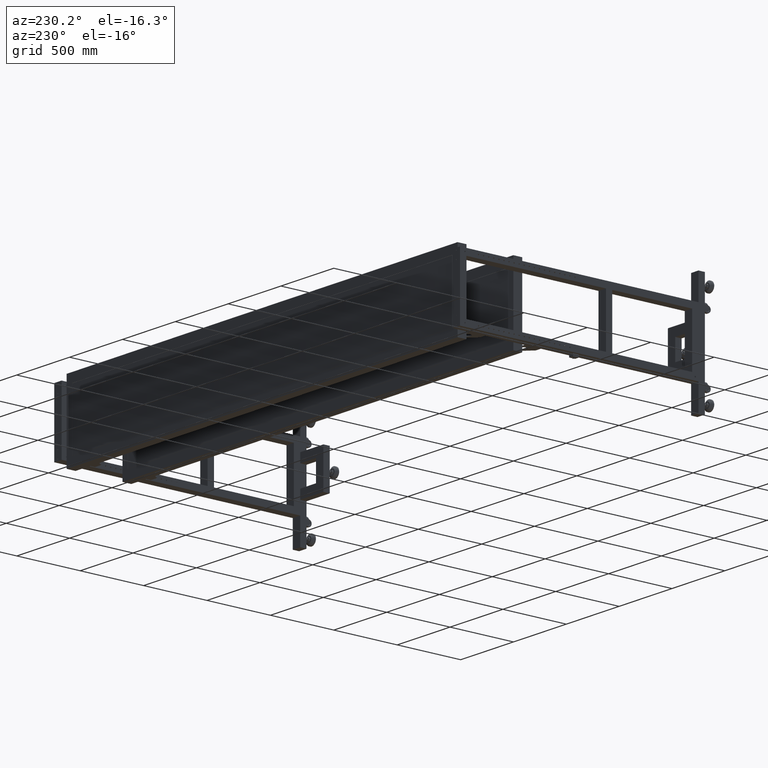
[diagram: clean part render]
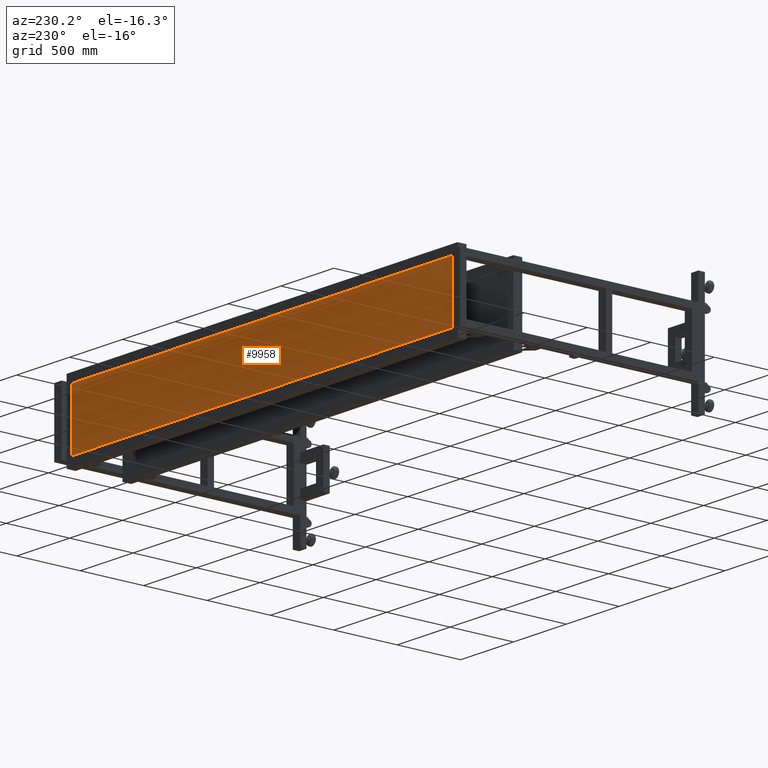
[diagram: same view with one face highlighted and labeled with its STEP entity id]
A machine part, auxiliary view. The second image highlights one B-rep face of the part: STEP entity #9958.
In plain terms, the highlighted planar face has unit normal (-0, 1, 0).
Its self-contained STEP definition (entity closure, byte-faithful):
#283 = LINE ( 'NONE', #43656, #66588 ) ;
#602 = CARTESIAN_POINT ( 'NONE',  ( -1216.662487437185973, 996.9410804020126307, 228.4900000000011744 ) ) ;
#4982 = LINE ( 'NONE', #35648, #56454 ) ;
#5491 = CARTESIAN_POINT ( 'NONE',  ( 2380.317512562815864, 996.9410804020134265, -228.4899999999988438 ) ) ;
#6874 = CARTESIAN_POINT ( 'NONE',  ( 2380.317512562815864, 996.9410804020134265, -228.4899999999988438 ) ) ;
#9958 = ADVANCED_FACE ( 'NONE', ( #29643 ), #17000, .T. ) ;
#11650 = LINE ( 'NONE', #5491, #56738 ) ;
#14496 = EDGE_LOOP ( 'NONE', ( #19431, #40355, #73141, #60924 ) ) ;
#14719 = LINE ( 'NONE', #58490, #63838 ) ;
#16549 = VERTEX_POINT ( 'NONE', #6874 ) ;
#17000 = PLANE ( 'NONE',  #58194 ) ;
#19431 = ORIENTED_EDGE ( 'NONE', *, *, #44378, .F. ) ;
#23924 = DIRECTION ( 'NONE',  ( 4.543257172554225407E-31, -1.000000000000000472E-15, 1.000000000000000000 ) ) ;
#28192 = DIRECTION ( 'NONE',  ( 1.000000000000000000, 4.543257172554223644E-16, 0.000000000000000000 ) ) ;
#29643 = FACE_OUTER_BOUND ( 'NONE', #14496, .T. ) ;
#30427 = DIRECTION ( 'NONE',  ( -4.543257172554223644E-16, 1.000000000000000000, 1.000000000000000472E-15 ) ) ;
#35648 = CARTESIAN_POINT ( 'NONE',  ( 1880.317512562814727, 996.9410804020137675, 228.4900000000011744 ) ) ;
#37366 = VERTEX_POINT ( 'NONE', #47224 ) ;
#40217 = VERTEX_POINT ( 'NONE', #602 ) ;
#40355 = ORIENTED_EDGE ( 'NONE', *, *, #57100, .F. ) ;
#43656 = CARTESIAN_POINT ( 'NONE',  ( -1216.662487437185973, 996.9410804020130854, -228.4899999999988438 ) ) ;
#44378 = EDGE_CURVE ( 'NONE', #80769, #40217, #4982, .T. ) ;
#47224 = CARTESIAN_POINT ( 'NONE',  ( -1216.662487437185973, 996.9410804020130854, -228.4899999999988438 ) ) ;
#54493 = DIRECTION ( 'NONE',  ( -1.000000000000000000, -4.543257172554223644E-16, 0.000000000000000000 ) ) ;
#56454 = VECTOR ( 'NONE', #54493, 1000.000000000000000 ) ;
#56738 = VECTOR ( 'NONE', #62348, 1000.000000000000000 ) ;
#57100 = EDGE_CURVE ( 'NONE', #16549, #80769, #11650, .T. ) ;
#58194 = AXIS2_PLACEMENT_3D ( 'NONE', #79182, #30427, #23924 ) ;
#58490 = CARTESIAN_POINT ( 'NONE',  ( -516.6624874371854048, 996.9410804020130854, -228.4899999999988438 ) ) ;
#60924 = ORIENTED_EDGE ( 'NONE', *, *, #64986, .T. ) ;
#62348 = DIRECTION ( 'NONE',  ( 2.216956027235895584E-31, -1.000000000000000472E-15, 1.000000000000000000 ) ) ;
#63153 = EDGE_CURVE ( 'NONE', #37366, #16549, #14719, .T. ) ;
#63838 = VECTOR ( 'NONE', #28192, 1000.000000000000000 ) ;
#64986 = EDGE_CURVE ( 'NONE', #37366, #40217, #283, .T. ) ;
#66446 = CARTESIAN_POINT ( 'NONE',  ( 2380.317512562815864, 996.9410804020129717, 228.4900000000011744 ) ) ;
#66588 = VECTOR ( 'NONE', #67404, 1000.000000000000000 ) ;
#67404 = DIRECTION ( 'NONE',  ( 0.000000000000000000, -1.000000000000000472E-15, 1.000000000000000000 ) ) ;
#73141 = ORIENTED_EDGE ( 'NONE', *, *, #63153, .F. ) ;
#79182 = CARTESIAN_POINT ( 'NONE',  ( 681.8275125628146043, 996.9410804020134265, 1.167234175856414311E-12 ) ) ;
#80769 = VERTEX_POINT ( 'NONE', #66446 ) ;